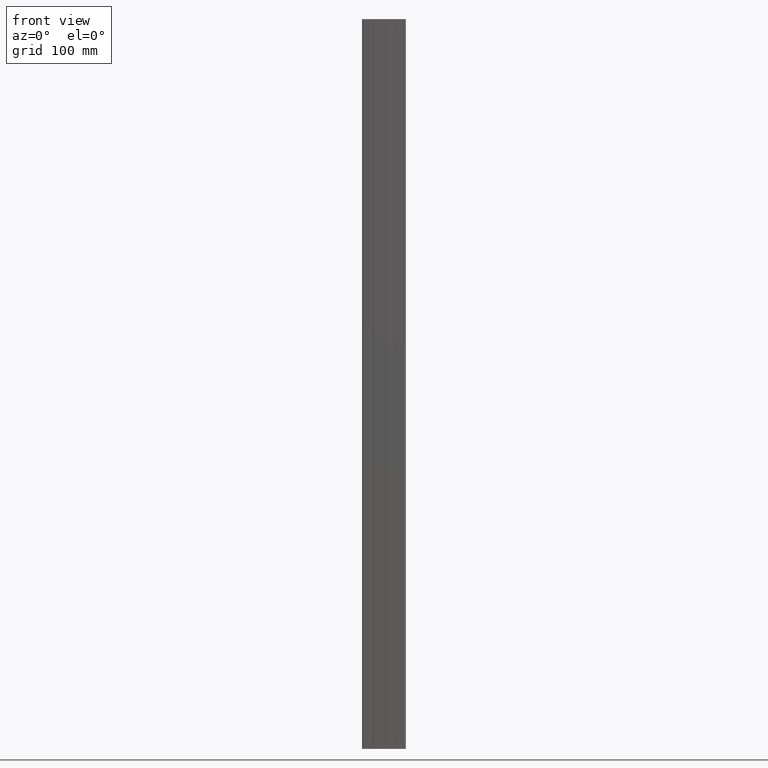
[diagram: clean part render]
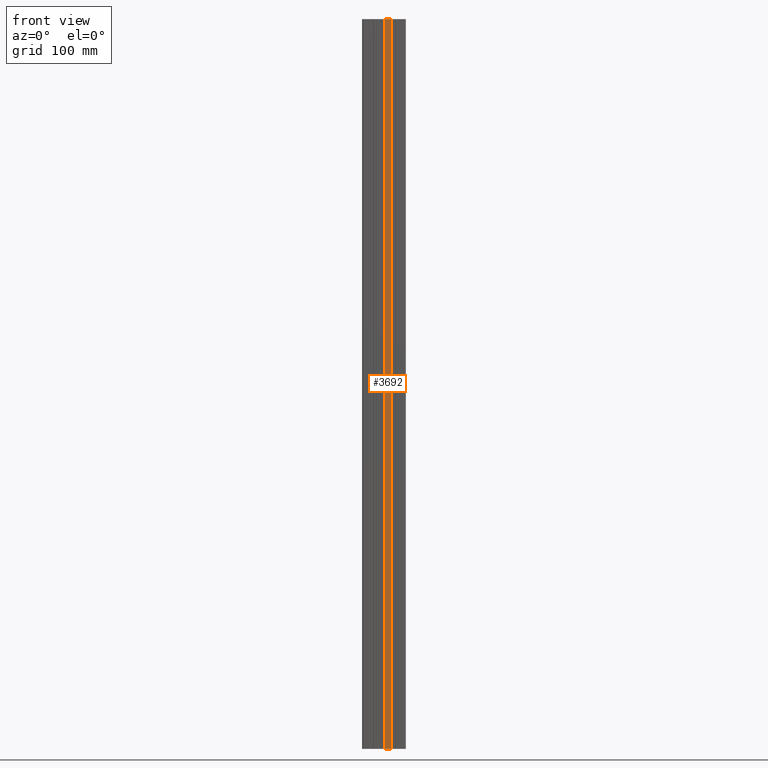
[diagram: same view with one face highlighted and labeled with its STEP entity id]
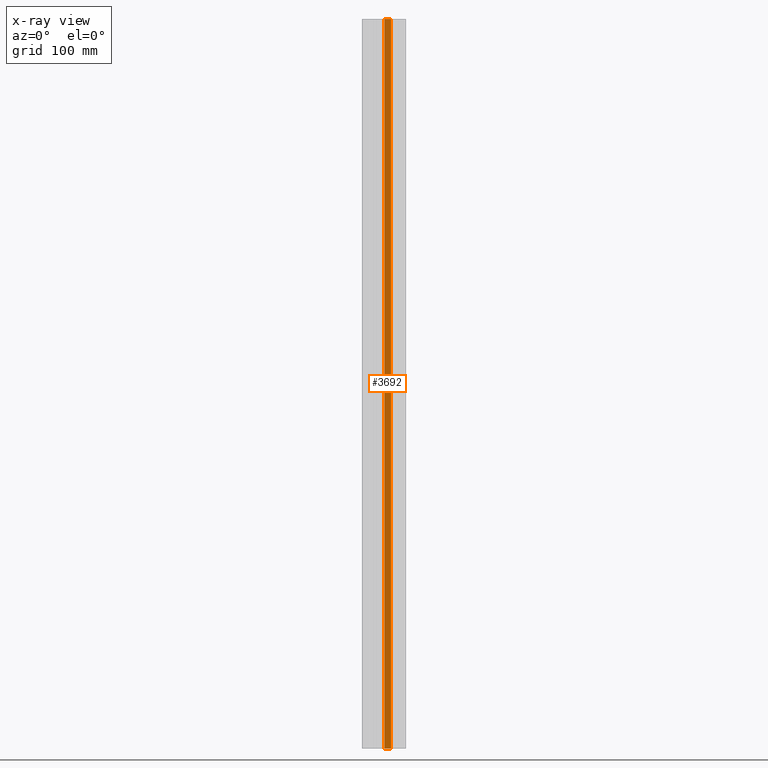
[diagram: x-ray of the same camera — body ghosted, the highlighted face saturated]
A machine part, front view. The second image highlights one B-rep face of the part: STEP entity #3692.
The next image is the same camera in x-ray: the body ghosted, the highlighted face saturated — about 0% of this face is hidden behind the body in this view.
In plain terms, the highlighted planar face has unit normal (0, -1, 0).
Its self-contained STEP definition (entity closure, byte-faithful):
#136 = VERTEX_POINT ( 'NONE', #7512 ) ;
#310 = EDGE_LOOP ( 'NONE', ( #2867, #5521, #1865, #4183 ) ) ;
#384 = DIRECTION ( 'NONE',  ( 1.000000000000000000, 1.591489427501657157E-16, 0.0000000000000000000 ) ) ;
#387 = VECTOR ( 'NONE', #8676, 1000.000000000000000 ) ;
#389 = EDGE_CURVE ( 'NONE', #1953, #6537, #2043, .T. ) ;
#532 = DIRECTION ( 'NONE',  ( -0.0000000000000000000, -0.0000000000000000000, -1.000000000000000000 ) ) ;
#1028 = CARTESIAN_POINT ( 'NONE',  ( 24.85000000000001208, -15.00000000000000000, -1000.000000000000000 ) ) ;
#1708 = CARTESIAN_POINT ( 'NONE',  ( 25.90000000000001990, -15.00000000000000000, 0.0000000000000000000 ) ) ;
#1865 = ORIENTED_EDGE ( 'NONE', *, *, #8292, .F. ) ;
#1953 = VERTEX_POINT ( 'NONE', #9533 ) ;
#2043 = LINE ( 'NONE', #8764, #8184 ) ;
#2226 = VERTEX_POINT ( 'NONE', #1028 ) ;
#2390 = DIRECTION ( 'NONE',  ( 1.591489427501657157E-16, -1.000000000000000000, 0.0000000000000000000 ) ) ;
#2867 = ORIENTED_EDGE ( 'NONE', *, *, #8919, .F. ) ;
#2961 = EDGE_CURVE ( 'NONE', #2226, #136, #7167, .T. ) ;
#3170 = FACE_OUTER_BOUND ( 'NONE', #310, .T. ) ;
#3692 = ADVANCED_FACE ( 'NONE', ( #3170 ), #5336, .T. ) ;
#3911 = CARTESIAN_POINT ( 'NONE',  ( 25.90000000000001990, -15.00000000000000000, -1021.213203435596256 ) ) ;
#4161 = VECTOR ( 'NONE', #384, 1000.000000000000000 ) ;
#4183 = ORIENTED_EDGE ( 'NONE', *, *, #389, .T. ) ;
#5336 = PLANE ( 'NONE',  #7853 ) ;
#5399 = LINE ( 'NONE', #6879, #6051 ) ;
#5521 = ORIENTED_EDGE ( 'NONE', *, *, #2961, .T. ) ;
#6051 = VECTOR ( 'NONE', #6970, 1000.000000000000000 ) ;
#6162 = DIRECTION ( 'NONE',  ( 1.000000000000000000, 1.591489427501657157E-16, 0.0000000000000000000 ) ) ;
#6537 = VERTEX_POINT ( 'NONE', #8052 ) ;
#6879 = CARTESIAN_POINT ( 'NONE',  ( 25.90000000000001990, -15.00000000000000000, -1000.000000000000000 ) ) ;
#6970 = DIRECTION ( 'NONE',  ( -1.000000000000000000, -1.591489427501657157E-16, 0.0000000000000000000 ) ) ;
#7167 = LINE ( 'NONE', #9425, #387 ) ;
#7512 = CARTESIAN_POINT ( 'NONE',  ( 24.85000000000001208, -15.00000000000000000, 0.0000000000000000000 ) ) ;
#7853 = AXIS2_PLACEMENT_3D ( 'NONE', #3911, #2390, #6162 ) ;
#8052 = CARTESIAN_POINT ( 'NONE',  ( 15.33769526483957080, -15.00000000000000178, -1000.000000000000000 ) ) ;
#8184 = VECTOR ( 'NONE', #532, 1000.000000000000000 ) ;
#8292 = EDGE_CURVE ( 'NONE', #1953, #136, #8524, .T. ) ;
#8524 = LINE ( 'NONE', #1708, #4161 ) ;
#8676 = DIRECTION ( 'NONE',  ( 0.0000000000000000000, 0.0000000000000000000, 1.000000000000000000 ) ) ;
#8764 = CARTESIAN_POINT ( 'NONE',  ( 15.33769526483957080, -15.00000000000000178, -1000.000000000000000 ) ) ;
#8919 = EDGE_CURVE ( 'NONE', #2226, #6537, #5399, .T. ) ;
#9425 = CARTESIAN_POINT ( 'NONE',  ( 24.85000000000001208, -15.00000000000000000, 0.0000000000000000000 ) ) ;
#9533 = CARTESIAN_POINT ( 'NONE',  ( 15.33769526483957080, -15.00000000000000178, 0.0000000000000000000 ) ) ;